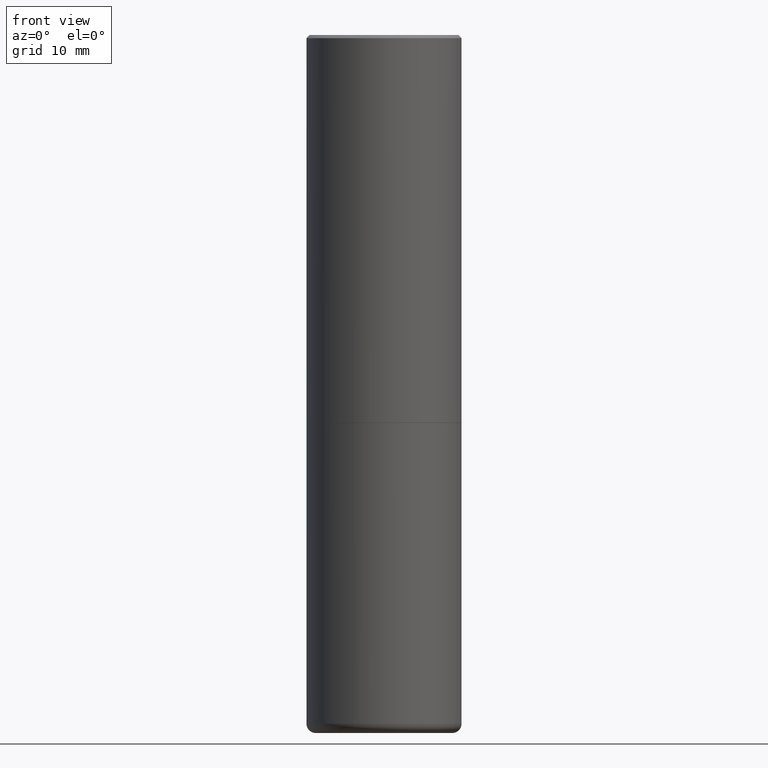
[diagram: clean part render]
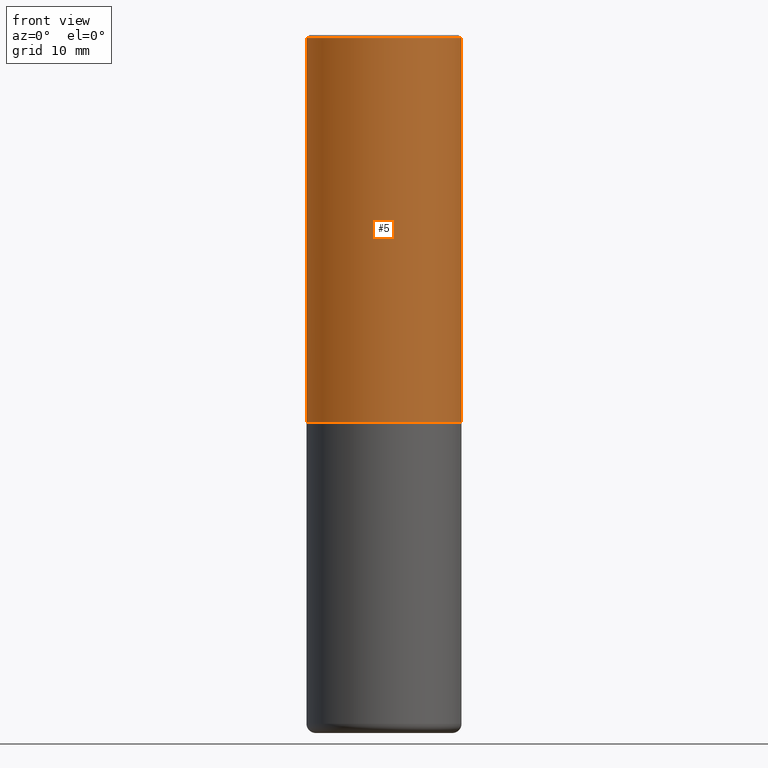
[diagram: same view with one face highlighted and labeled with its STEP entity id]
A machine part, front view. The second image highlights one B-rep face of the part: STEP entity #5.
In plain terms, the highlighted cylindrical surface (partial cylindrical patch) has radius 12.7 mm, axis along (-0, 0, 1).
Its self-contained STEP definition (entity closure, byte-faithful):
#2 = AXIS2_PLACEMENT_3D ( 'NONE', #137, #275, #305 ) ;
#5 = ADVANCED_FACE ( 'NONE', ( #62 ), #239, .T. ) ;
#8 = CIRCLE ( 'NONE', #256, 0.4999999999999999445 ) ;
#15 = DIRECTION ( 'NONE',  ( 1.000000000000000000, -6.982962677686266711E-15, 0.000000000000000000 ) ) ;
#20 = EDGE_CURVE ( 'NONE', #413, #394, #388, .T. ) ;
#22 = CIRCLE ( 'NONE', #387, 0.5000000000000002220 ) ;
#39 = EDGE_CURVE ( 'NONE', #66, #413, #22, .T. ) ;
#44 = EDGE_CURVE ( 'NONE', #66, #163, #272, .T. ) ;
#56 = VECTOR ( 'NONE', #95, 39.37007874015748143 ) ;
#62 = FACE_OUTER_BOUND ( 'NONE', #82, .T. ) ;
#63 = ORIENTED_EDGE ( 'NONE', *, *, #20, .T. ) ;
#64 = CARTESIAN_POINT ( 'NONE',  ( 0.5000000000000002220, -1.221669320461215845E-14, -2.499000000000000110 ) ) ;
#66 = VERTEX_POINT ( 'NONE', #109 ) ;
#82 = EDGE_LOOP ( 'NONE', ( #225, #187, #63, #221 ) ) ;
#88 = VECTOR ( 'NONE', #227, 39.37007874015748143 ) ;
#95 = DIRECTION ( 'NONE',  ( -2.445468806185136877E-29, 3.491481338843145188E-15, 1.000000000000000000 ) ) ;
#109 = CARTESIAN_POINT ( 'NONE',  ( -0.5000000000000002220, -8.448070674724393209E-16, -2.499000000000000110 ) ) ;
#130 = DIRECTION ( 'NONE',  ( 1.000000000000000000, -6.982962677686269866E-15, 0.000000000000000000 ) ) ;
#137 = CARTESIAN_POINT ( 'NONE',  ( 0.000000000000000000, 0.000000000000000000, 0.000000000000000000 ) ) ;
#138 = CARTESIAN_POINT ( 'NONE',  ( -0.4999999999999999445, 3.421651712066269663E-15, -0.02000000000000010797 ) ) ;
#163 = VERTEX_POINT ( 'NONE', #138 ) ;
#165 = DIRECTION ( 'NONE',  ( -2.445468806185136597E-29, 3.491481338843145583E-15, 1.000000000000000000 ) ) ;
#187 = ORIENTED_EDGE ( 'NONE', *, *, #39, .T. ) ;
#221 = ORIENTED_EDGE ( 'NONE', *, *, #286, .F. ) ;
#225 = ORIENTED_EDGE ( 'NONE', *, *, #44, .F. ) ;
#227 = DIRECTION ( 'NONE',  ( -2.445468806185136877E-29, 3.491481338843145188E-15, 1.000000000000000000 ) ) ;
#233 = CARTESIAN_POINT ( 'NONE',  ( 0.5000000000000001110, -3.491481338843134539E-15, 2.438088387897968457E-29 ) ) ;
#239 = CYLINDRICAL_SURFACE ( 'NONE', #2, 0.5000000000000001110 ) ;
#256 = AXIS2_PLACEMENT_3D ( 'NONE', #294, #291, #15 ) ;
#272 = LINE ( 'NONE', #390, #56 ) ;
#275 = DIRECTION ( 'NONE',  ( -2.445468806185136597E-29, 3.491481338843145583E-15, 1.000000000000000000 ) ) ;
#286 = EDGE_CURVE ( 'NONE', #163, #394, #8, .T. ) ;
#291 = DIRECTION ( 'NONE',  ( -2.445468806185136597E-29, 3.491481338843145583E-15, 1.000000000000000000 ) ) ;
#294 = CARTESIAN_POINT ( 'NONE',  ( 4.890937612370299433E-31, -6.982962677686328587E-17, -0.02000000000000010797 ) ) ;
#305 = DIRECTION ( 'NONE',  ( 1.000000000000000000, -6.982962677686267499E-15, 4.876176775795935793E-29 ) ) ;
#365 = CARTESIAN_POINT ( 'NONE',  ( 6.111226546656657010E-29, -8.725211865769021935E-15, -2.499000000000000110 ) ) ;
#387 = AXIS2_PLACEMENT_3D ( 'NONE', #365, #165, #130 ) ;
#388 = LINE ( 'NONE', #233, #88 ) ;
#390 = CARTESIAN_POINT ( 'NONE',  ( -0.5000000000000001110, 3.552713678800501718E-15, -2.459467545127453732E-29 ) ) ;
#394 = VERTEX_POINT ( 'NONE', #417 ) ;
#413 = VERTEX_POINT ( 'NONE', #64 ) ;
#417 = CARTESIAN_POINT ( 'NONE',  ( 0.4999999999999999445, -3.500078625662628685E-15, -0.02000000000000010797 ) ) ;